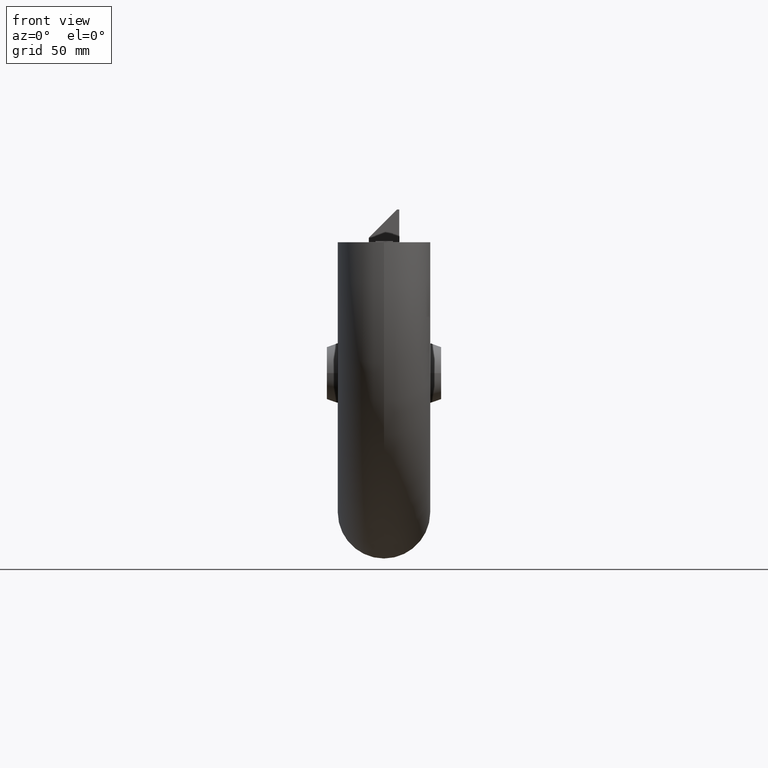
[diagram: clean part render]
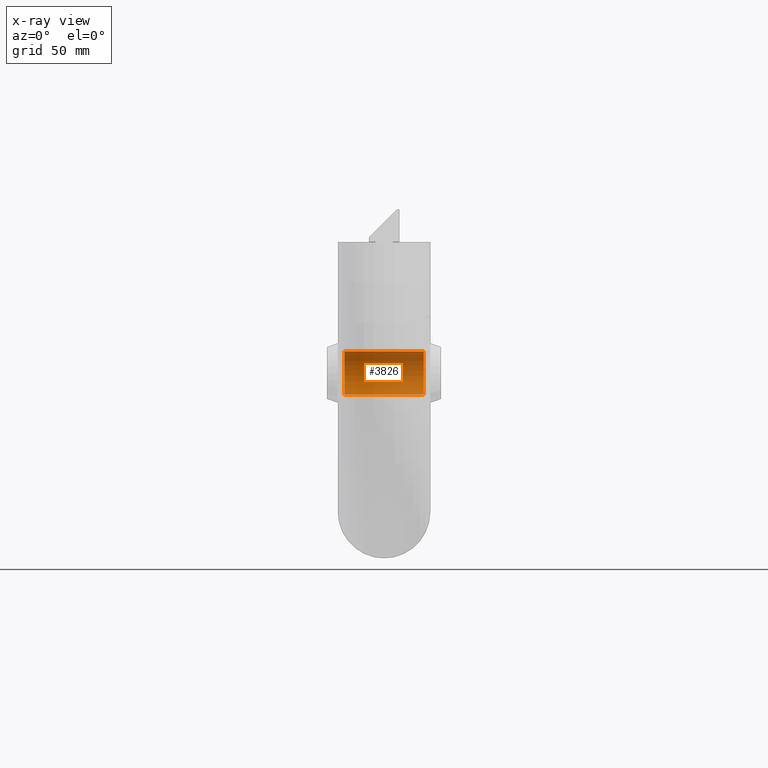
[diagram: x-ray — body ghosted, one internal face saturated and labeled with its STEP entity id]
A machine part, front view, then the same camera in x-ray: the body is ghosted and one INTERNAL B-rep face — a face not visible from any outside direction — is saturated and labeled: STEP entity #3826.
In plain terms, the highlighted cylindrical surface (edge-blend (fillet) strip) has radius 9.9 mm, axis along (-1, -0, -0).
Its self-contained STEP definition (entity closure, byte-faithful):
#724 = DIRECTION ( 'NONE',  ( 0.000000000000000000, 0.000000000000000000, -1.000000000000000000 ) ) ;
#731 = ORIENTED_EDGE ( 'NONE', *, *, #3401, .T. ) ;
#1236 = CARTESIAN_POINT ( 'NONE',  ( 18.19999999999999929, 42.99999999999998579, -59.99999999999995026 ) ) ;
#1767 = LINE ( 'NONE', #6821, #16363 ) ;
#2231 = AXIS2_PLACEMENT_3D ( 'NONE', #16348, #8447, #724 ) ;
#2463 = ORIENTED_EDGE ( 'NONE', *, *, #16052, .T. ) ;
#2669 = CARTESIAN_POINT ( 'NONE',  ( 46.20142853498730062, 42.99999999999998579, -59.99999999999995026 ) ) ;
#3022 = VERTEX_POINT ( 'NONE', #8979 ) ;
#3401 = EDGE_CURVE ( 'NONE', #6760, #14408, #1767, .T. ) ;
#3679 = CARTESIAN_POINT ( 'NONE',  ( -18.19999999999999929, 42.99999999999998579, -50.09999999999994458 ) ) ;
#3762 = FACE_OUTER_BOUND ( 'NONE', #15388, .T. ) ;
#3826 = ADVANCED_FACE ( 'NONE', ( #3762 ), #13539, .T. ) ;
#5673 = DIRECTION ( 'NONE',  ( -1.000000000000000000, -0.000000000000000000, -0.000000000000000000 ) ) ;
#5824 = CARTESIAN_POINT ( 'NONE',  ( 18.19999999999999929, 42.99999999999998579, -69.89999999999996305 ) ) ;
#6760 = VERTEX_POINT ( 'NONE', #5824 ) ;
#6821 = CARTESIAN_POINT ( 'NONE',  ( 46.20142853498730062, 42.99999999999998579, -69.89999999999996305 ) ) ;
#7307 = ORIENTED_EDGE ( 'NONE', *, *, #9900, .F. ) ;
#7324 = AXIS2_PLACEMENT_3D ( 'NONE', #2669, #9134, #7645 ) ;
#7645 = DIRECTION ( 'NONE',  ( 0.000000000000000000, 0.000000000000000000, 1.000000000000000000 ) ) ;
#8129 = DIRECTION ( 'NONE',  ( -1.000000000000000000, -0.000000000000000000, -0.000000000000000000 ) ) ;
#8225 = LINE ( 'NONE', #10841, #11295 ) ;
#8447 = DIRECTION ( 'NONE',  ( 1.000000000000000000, 0.000000000000000000, 0.000000000000000000 ) ) ;
#8979 = CARTESIAN_POINT ( 'NONE',  ( 18.19999999999999929, 42.99999999999998579, -50.09999999999994458 ) ) ;
#9134 = DIRECTION ( 'NONE',  ( -1.000000000000000000, -0.000000000000000000, -0.000000000000000000 ) ) ;
#9142 = DIRECTION ( 'NONE',  ( 1.000000000000000000, 0.000000000000000000, 0.000000000000000000 ) ) ;
#9900 = EDGE_CURVE ( 'NONE', #3022, #15569, #8225, .T. ) ;
#10216 = EDGE_CURVE ( 'NONE', #6760, #3022, #11689, .T. ) ;
#10459 = DIRECTION ( 'NONE',  ( 0.000000000000000000, 0.000000000000000000, -1.000000000000000000 ) ) ;
#10825 = CIRCLE ( 'NONE', #2231, 9.900000000000012790 ) ;
#10841 = CARTESIAN_POINT ( 'NONE',  ( 46.20142853498730062, 42.99999999999998579, -50.09999999999994458 ) ) ;
#11295 = VECTOR ( 'NONE', #5673, 1000.000000000000000 ) ;
#11689 = CIRCLE ( 'NONE', #15416, 9.900000000000012790 ) ;
#11794 = CARTESIAN_POINT ( 'NONE',  ( -18.19999999999999929, 42.99999999999998579, -69.89999999999996305 ) ) ;
#13539 = CYLINDRICAL_SURFACE ( 'NONE', #7324, 9.900000000000005684 ) ;
#14408 = VERTEX_POINT ( 'NONE', #11794 ) ;
#15159 = ORIENTED_EDGE ( 'NONE', *, *, #10216, .F. ) ;
#15388 = EDGE_LOOP ( 'NONE', ( #15159, #731, #2463, #7307 ) ) ;
#15416 = AXIS2_PLACEMENT_3D ( 'NONE', #1236, #9142, #10459 ) ;
#15569 = VERTEX_POINT ( 'NONE', #3679 ) ;
#16052 = EDGE_CURVE ( 'NONE', #14408, #15569, #10825, .T. ) ;
#16348 = CARTESIAN_POINT ( 'NONE',  ( -18.19999999999999929, 42.99999999999998579, -59.99999999999995026 ) ) ;
#16363 = VECTOR ( 'NONE', #8129, 1000.000000000000000 ) ;